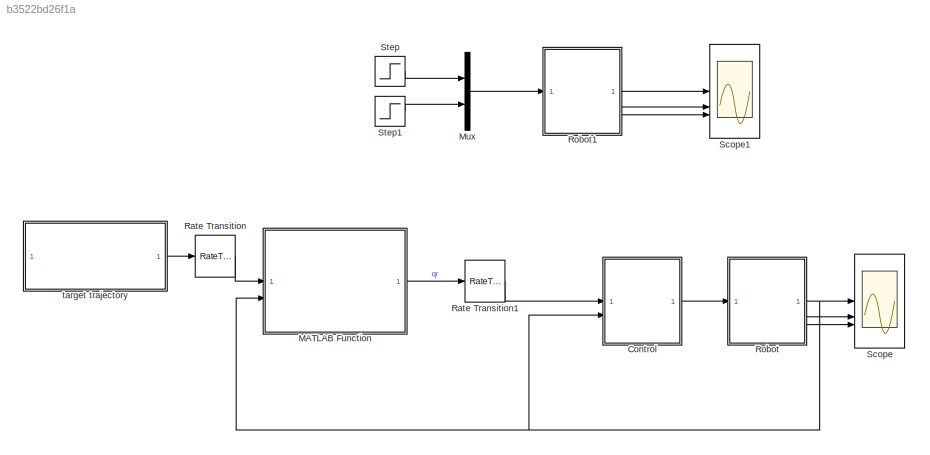
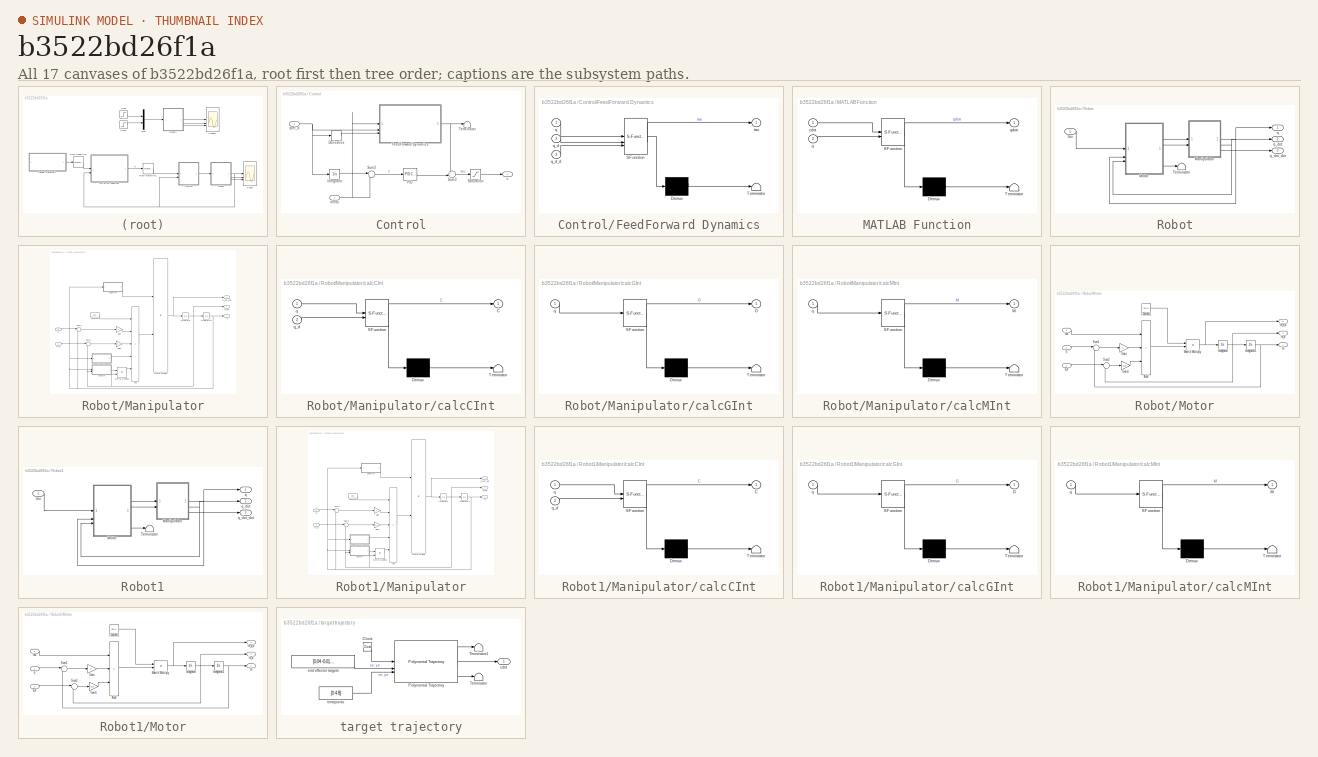
[diagram: thumbnail index - all 17 canvases of the model, root first then tree order]
MODEL slx_b3522bd26f1a
KIND model
CONFIG AbsTol = auto
CONFIG EnableMultiTasking = off
CONFIG FixedStep = auto
CONFIG InitFcn = init_const;
CONFIG MaxStep = auto
CONFIG MinStep = auto
CONFIG RelTol = 1e-3
CONFIG SampleTimeConstraint = Unconstrained
CONFIG SolverName = VariableStepAuto
CONFIG StartTime = 0.0
CONFIG StopTime = 12
BLOCK [SubSystem] Control
BLOCK [Derivative] Control/Derivative
BLOCK [SubSystem] Control/FeedForward Dynamics
  ErrorFcn = Stateflow.Translate.translate
  PermitHierarchicalResolution = ExplicitOnly
  SFBlockType = MATLAB Function
  TreatAsAtomicUnit = on
BLOCK [Demux] Control/FeedForward Dynamics/ Demux 
  Outputs = 1
BLOCK [S-Function] Control/FeedForward Dynamics/ SFunction 
  EnableBusSupport = on
  FunctionName = sf_sfun
  Parameters = g,l1,l2,m1,m2
  PortCounts = [3 2]
  SFcnIsStateOwnerBlock = off
  SFunctionDeploymentMode = off
  Tag = Stateflow S-Function 13
BLOCK [Terminator] Control/FeedForward Dynamics/ Terminator 
BLOCK [Inport] Control/FeedForward Dynamics/q
BLOCK [Inport] Control/FeedForward Dynamics/q_d
  Port = 2
BLOCK [Inport] Control/FeedForward Dynamics/q_d_d
  Port = 3
BLOCK [Outport] Control/FeedForward Dynamics/tau
BLOCK [Integrator] Control/Integrator
BLOCK [Reference] Control/PID  REF=slpidlib/PID Controller
  LibrarySourceBlock = simulink/Continuous/PID Controller
  SourceBlock = slpidlib/PID Controller
  SourceType = PID 1dof
BLOCK [Saturate] Control/Saturation
  LowerLimit = -12
  UpperLimit = 12
BLOCK [Sum] Control/Sum2
  Inputs = |+-
BLOCK [Sum] Control/Sum3
  Inputs = ++|
BLOCK [Terminator] Control/Terminator
BLOCK [Inport] Control/meas
  Port = 2
BLOCK [Inport] Control/qref_d
BLOCK [Outport] Control/u
BLOCK [SubSystem] MATLAB Function
  ErrorFcn = Stateflow.Translate.translate
  PermitHierarchicalResolution = ExplicitOnly
  SFBlockType = MATLAB Function
  TreatAsAtomicUnit = on
BLOCK [Demux] MATLAB Function/ Demux 
  Outputs = 1
BLOCK [S-Function] MATLAB Function/ SFunction 
  EnableBusSupport = on
  FunctionName = sf_sfun
  Parameters = l1,l2
  PortCounts = [2 2]
  SFcnIsStateOwnerBlock = off
  SFunctionDeploymentMode = off
  Tag = Stateflow S-Function 4
BLOCK [Terminator] MATLAB Function/ Terminator 
BLOCK [Inport] MATLAB Function/cdot
BLOCK [Inport] MATLAB Function/q
  Port = 2
BLOCK [Outport] MATLAB Function/qdotr
BLOCK [Mux] Mux
  Commented = on
  DisplayOption = bar
  Inputs = 2
BLOCK [RateTransition] Rate Transition
BLOCK [RateTransition] Rate Transition1
BLOCK [SubSystem] Robot
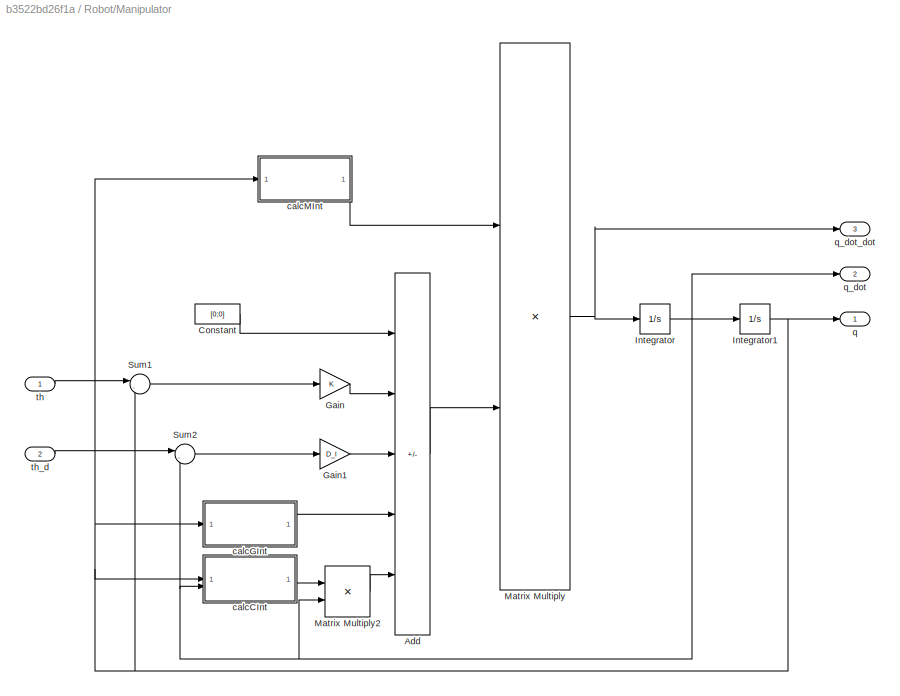
BLOCK [SubSystem] Robot/Manipulator
BLOCK [Sum] Robot/Manipulator/Add
  IconShape = rectangular
  Inputs = +----
BLOCK [Constant] Robot/Manipulator/Constant
  Value = [0;0]
BLOCK [Gain] Robot/Manipulator/Gain
  Gain = K
  Multiplication = Matrix(K*u)
BLOCK [Gain] Robot/Manipulator/Gain1
  Gain = D_l
  Multiplication = Matrix(K*u)
BLOCK [Integrator] Robot/Manipulator/Integrator
BLOCK [Integrator] Robot/Manipulator/Integrator1
BLOCK [Product] Robot/Manipulator/Matrix Multiply
  Multiplication = Matrix(*)
BLOCK [Product] Robot/Manipulator/Matrix Multiply2
  Multiplication = Matrix(*)
BLOCK [Sum] Robot/Manipulator/Sum1
  Inputs = |-+
BLOCK [Sum] Robot/Manipulator/Sum2
  Inputs = |-+
BLOCK [SubSystem] Robot/Manipulator/calcCInt
  ErrorFcn = Stateflow.Translate.translate
  PermitHierarchicalResolution = ExplicitOnly
  SFBlockType = MATLAB Function
  TreatAsAtomicUnit = on
BLOCK [Demux] Robot/Manipulator/calcCInt/ Demux 
  Outputs = 1
BLOCK [S-Function] Robot/Manipulator/calcCInt/ SFunction 
  EnableBusSupport = on
  FunctionName = sf_sfun
  Parameters = l1,l2,m1,m2
  PortCounts = [2 2]
  SFcnIsStateOwnerBlock = off
  SFunctionDeploymentMode = off
  Tag = Stateflow S-Function 1
BLOCK [Terminator] Robot/Manipulator/calcCInt/ Terminator 
BLOCK [Outport] Robot/Manipulator/calcCInt/C
BLOCK [Inport] Robot/Manipulator/calcCInt/q
BLOCK [Inport] Robot/Manipulator/calcCInt/q_d
  Port = 2
BLOCK [SubSystem] Robot/Manipulator/calcGInt
  ErrorFcn = Stateflow.Translate.translate
  PermitHierarchicalResolution = ExplicitOnly
  SFBlockType = MATLAB Function
  TreatAsAtomicUnit = on
BLOCK [Demux] Robot/Manipulator/calcGInt/ Demux 
  Outputs = 1
BLOCK [S-Function] Robot/Manipulator/calcGInt/ SFunction 
  EnableBusSupport = on
  FunctionName = sf_sfun
  Parameters = g,l1,l2,m1,m2
  PortCounts = [1 2]
  SFcnIsStateOwnerBlock = off
  SFunctionDeploymentMode = off
  Tag = Stateflow S-Function 3
BLOCK [Terminator] Robot/Manipulator/calcGInt/ Terminator 
BLOCK [Outport] Robot/Manipulator/calcGInt/G
BLOCK [Inport] Robot/Manipulator/calcGInt/q
BLOCK [SubSystem] Robot/Manipulator/calcMInt
  ErrorFcn = Stateflow.Translate.translate
  PermitHierarchicalResolution = ExplicitOnly
  SFBlockType = MATLAB Function
  TreatAsAtomicUnit = on
BLOCK [Demux] Robot/Manipulator/calcMInt/ Demux 
  Outputs = 1
BLOCK [S-Function] Robot/Manipulator/calcMInt/ SFunction 
  EnableBusSupport = on
  FunctionName = sf_sfun
  Parameters = l1,l2,m1,m2
  PortCounts = [1 2]
  SFcnIsStateOwnerBlock = off
  SFunctionDeploymentMode = off
  Tag = Stateflow S-Function 2
BLOCK [Terminator] Robot/Manipulator/calcMInt/ Terminator 
BLOCK [Outport] Robot/Manipulator/calcMInt/M
BLOCK [Inport] Robot/Manipulator/calcMInt/q
BLOCK [Outport] Robot/Manipulator/q
BLOCK [Outport] Robot/Manipulator/q_dot
  Port = 2
BLOCK [Outport] Robot/Manipulator/q_dot_dot
  Port = 3
BLOCK [Inport] Robot/Manipulator/th
BLOCK [Inport] Robot/Manipulator/th_d
  Port = 2
BLOCK [SubSystem] Robot/Motor
BLOCK [Sum] Robot/Motor/Add
  IconShape = rectangular
  Inputs = +--
BLOCK [Constant] Robot/Motor/Constant1
  Value = inv(J)
BLOCK [Gain] Robot/Motor/Gain
  Gain = K
  Multiplication = Matrix(K*u)
BLOCK [Gain] Robot/Motor/Gain1
  Gain = D_m
  Multiplication = Matrix(K*u)
BLOCK [Integrator] Robot/Motor/Integrator
BLOCK [Integrator] Robot/Motor/Integrator1
BLOCK [Product] Robot/Motor/Matrix Multiply
  Multiplication = Matrix(*)
BLOCK [Sum] Robot/Motor/Sum1
  Inputs = |-+
BLOCK [Sum] Robot/Motor/Sum2
  Inputs = |-+
BLOCK [Inport] Robot/Motor/q
  Port = 2
BLOCK [Inport] Robot/Motor/q_d
  Port = 3
BLOCK [Inport] Robot/Motor/tau
BLOCK [Outport] Robot/Motor/th
BLOCK [Outport] Robot/Motor/th_d
  Port = 2
BLOCK [Outport] Robot/Motor/th_d_d
  Port = 3
BLOCK [Terminator] Robot/Terminator
BLOCK [Outport] Robot/q
BLOCK [Outport] Robot/q_dot
  Port = 2
BLOCK [Outport] Robot/q_dot_dot
  Port = 3
BLOCK [Inport] Robot/tau
BLOCK [SubSystem] Robot1
  Commented = on
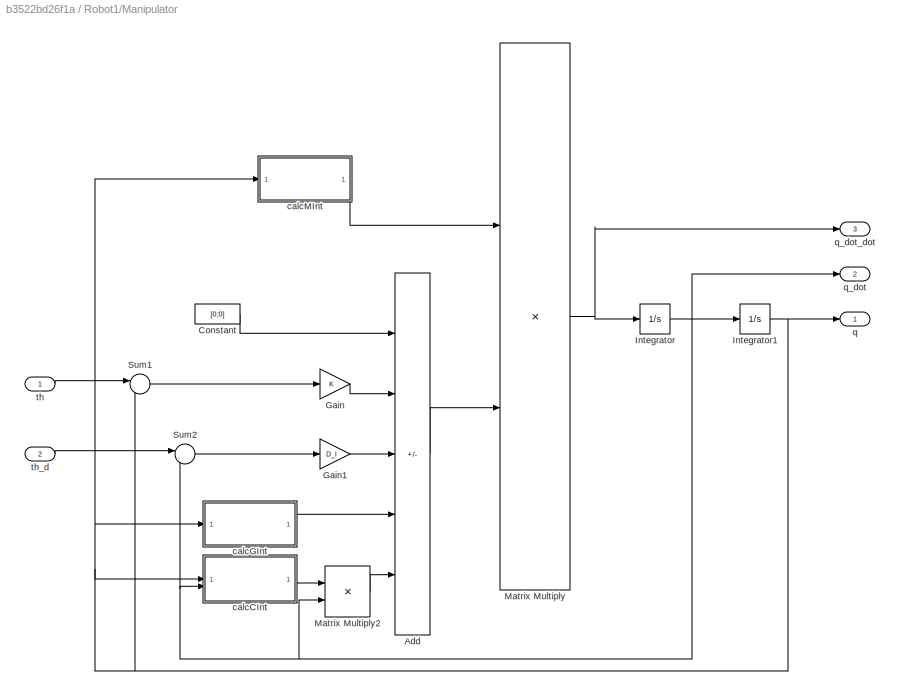
BLOCK [SubSystem] Robot1/Manipulator
BLOCK [Sum] Robot1/Manipulator/Add
  IconShape = rectangular
  Inputs = +----
BLOCK [Constant] Robot1/Manipulator/Constant
  Value = [0;0]
BLOCK [Gain] Robot1/Manipulator/Gain
  Gain = K
  Multiplication = Matrix(K*u)
BLOCK [Gain] Robot1/Manipulator/Gain1
  Gain = D_l
  Multiplication = Matrix(K*u)
BLOCK [Integrator] Robot1/Manipulator/Integrator
BLOCK [Integrator] Robot1/Manipulator/Integrator1
BLOCK [Product] Robot1/Manipulator/Matrix Multiply
  Multiplication = Matrix(*)
BLOCK [Product] Robot1/Manipulator/Matrix Multiply2
  Multiplication = Matrix(*)
BLOCK [Sum] Robot1/Manipulator/Sum1
  Inputs = |-+
BLOCK [Sum] Robot1/Manipulator/Sum2
  Inputs = |-+
BLOCK [SubSystem] Robot1/Manipulator/calcCInt
  ErrorFcn = Stateflow.Translate.translate
  PermitHierarchicalResolution = ExplicitOnly
  SFBlockType = MATLAB Function
  TreatAsAtomicUnit = on
BLOCK [Demux] Robot1/Manipulator/calcCInt/ Demux 
  Outputs = 1
BLOCK [S-Function] Robot1/Manipulator/calcCInt/ SFunction 
  EnableBusSupport = on
  FunctionName = sf_sfun
  Parameters = l1,l2,m1,m2
  PortCounts = [2 2]
  SFcnIsStateOwnerBlock = off
  SFunctionDeploymentMode = off
  Tag = Stateflow S-Function 5
BLOCK [Terminator] Robot1/Manipulator/calcCInt/ Terminator 
BLOCK [Outport] Robot1/Manipulator/calcCInt/C
BLOCK [Inport] Robot1/Manipulator/calcCInt/q
BLOCK [Inport] Robot1/Manipulator/calcCInt/q_d
  Port = 2
BLOCK [SubSystem] Robot1/Manipulator/calcGInt
  ErrorFcn = Stateflow.Translate.translate
  PermitHierarchicalResolution = ExplicitOnly
  SFBlockType = MATLAB Function
  TreatAsAtomicUnit = on
BLOCK [Demux] Robot1/Manipulator/calcGInt/ Demux 
  Outputs = 1
BLOCK [S-Function] Robot1/Manipulator/calcGInt/ SFunction 
  EnableBusSupport = on
  FunctionName = sf_sfun
  Parameters = g,l1,l2,m1,m2
  PortCounts = [1 2]
  SFcnIsStateOwnerBlock = off
  SFunctionDeploymentMode = off
  Tag = Stateflow S-Function 6
BLOCK [Terminator] Robot1/Manipulator/calcGInt/ Terminator 
BLOCK [Outport] Robot1/Manipulator/calcGInt/G
BLOCK [Inport] Robot1/Manipulator/calcGInt/q
BLOCK [SubSystem] Robot1/Manipulator/calcMInt
  ErrorFcn = Stateflow.Translate.translate
  PermitHierarchicalResolution = ExplicitOnly
  SFBlockType = MATLAB Function
  TreatAsAtomicUnit = on
BLOCK [Demux] Robot1/Manipulator/calcMInt/ Demux 
  Outputs = 1
BLOCK [S-Function] Robot1/Manipulator/calcMInt/ SFunction 
  EnableBusSupport = on
  FunctionName = sf_sfun
  Parameters = l1,l2,m1,m2
  PortCounts = [1 2]
  SFcnIsStateOwnerBlock = off
  SFunctionDeploymentMode = off
  Tag = Stateflow S-Function 7
BLOCK [Terminator] Robot1/Manipulator/calcMInt/ Terminator 
BLOCK [Outport] Robot1/Manipulator/calcMInt/M
BLOCK [Inport] Robot1/Manipulator/calcMInt/q
BLOCK [Outport] Robot1/Manipulator/q
BLOCK [Outport] Robot1/Manipulator/q_dot
  Port = 2
BLOCK [Outport] Robot1/Manipulator/q_dot_dot
  Port = 3
BLOCK [Inport] Robot1/Manipulator/th
BLOCK [Inport] Robot1/Manipulator/th_d
  Port = 2
BLOCK [SubSystem] Robot1/Motor
BLOCK [Sum] Robot1/Motor/Add
  IconShape = rectangular
  Inputs = +--
BLOCK [Constant] Robot1/Motor/Constant1
  Value = inv(J)
BLOCK [Gain] Robot1/Motor/Gain
  Gain = K
  Multiplication = Matrix(K*u)
BLOCK [Gain] Robot1/Motor/Gain1
  Gain = D_m
  Multiplication = Matrix(K*u)
BLOCK [Integrator] Robot1/Motor/Integrator
BLOCK [Integrator] Robot1/Motor/Integrator1
BLOCK [Product] Robot1/Motor/Matrix Multiply
  Multiplication = Matrix(*)
BLOCK [Sum] Robot1/Motor/Sum1
  Inputs = |-+
BLOCK [Sum] Robot1/Motor/Sum2
  Inputs = |-+
BLOCK [Inport] Robot1/Motor/q
  Port = 2
BLOCK [Inport] Robot1/Motor/q_d
  Port = 3
BLOCK [Inport] Robot1/Motor/tau
BLOCK [Outport] Robot1/Motor/th
BLOCK [Outport] Robot1/Motor/th_d
  Port = 2
BLOCK [Outport] Robot1/Motor/th_d_d
  Port = 3
BLOCK [Terminator] Robot1/Terminator
BLOCK [Outport] Robot1/q
BLOCK [Outport] Robot1/q_dot
  Port = 2
BLOCK [Outport] Robot1/q_dot_dot
  Port = 3
BLOCK [Inport] Robot1/tau
BLOCK [Scope] Scope
  Floating = off
  NumInputPorts = 3
  ScopeSpecificationString = Simulink.scopes.TimeScopeBlockCfg('CurrentConfiguration', extmgr.ConfigurationSet(extmgr.Configuration('Core','General UI',true),extmgr.Configuration('Core','Source UI',true),extmgr.Configuration('Sources','WiredSimulink',true,'DataLoggingVariableName','ScopeData1'),extmgr.Configuration('Visuals','Time Domain',true,'SerializedDisplays',{struct('MinYLimReal','-1.00000','MaxYLimReal','1.00000','YLab...<+3190ch>
BLOCK [Scope] Scope1
  Commented = on
  Floating = off
  NumInputPorts = 3
  ScopeSpecificationString = Simulink.scopes.TimeScopeBlockCfg('CurrentConfiguration', extmgr.ConfigurationSet(extmgr.Configuration('Core','General UI',true),extmgr.Configuration('Core','Source UI',true),extmgr.Configuration('Sources','WiredSimulink',true,'DataLoggingVariableName','ScopeData1'),extmgr.Configuration('Visuals','Time Domain',true,'SerializedDisplays',{struct('MinYLimReal','-13.25056','MaxYLimReal','60.05758','YL...<+3142ch>
BLOCK [Step] Step
  Commented = on
  SampleTime = 0
BLOCK [Step] Step1
  Commented = on
  SampleTime = 0
BLOCK [SubSystem] target trajectory
BLOCK [Clock] target trajectory/Clock
BLOCK [Reference] target trajectory/Polynomial Trajectory  REF=robotcorelib/Polynomial Trajectory
  SourceBlock = robotcorelib/Polynomial Trajectory
  SourceType = robotics.slcore.internal.block.PolyTrajSys
BLOCK [Terminator] target trajectory/Terminator
BLOCK [Terminator] target trajectory/Terminator1
BLOCK [Outport] target trajectory/cdot
BLOCK [Constant] target trajectory/end effector targets
  Value = [0.04 -0.011; 0.04 -0.011; -0.08 -0.03]'
BLOCK [Constant] target trajectory/timepoints
  Value = [0 4 8]
LINE Control/Derivative:1 -> Control/FeedForward Dynamics:3
NET Control/FeedForward Dynamics:1 -> Control/Sum3:1, Control/Terminator:1
LINE Control/Integrator:1 -> Control/Sum2:1
LINE Control/PID:1 -> Control/Sum3:2
LINE Control/Saturation:1 -> Control/u:1
LINE Control/Sum2:1 -> Control/PID:1
LINE Control/Sum3:1 -> Control/Saturation:1
NET Control/meas:1 -> Control/FeedForward Dynamics:1, Control/Sum2:2
NET Control/qref_d:1 -> Control/Derivative:1, Control/FeedForward Dynamics:2, Control/Integrator:1
LINE Control:1 -> Robot:1
LINE MATLAB Function:1 -> Rate Transition1:1
LINE Mux:1 -> Robot1:1
LINE Rate Transition1:1 -> Control:1
LINE Rate Transition:1 -> MATLAB Function:1
LINE Robot/Manipulator/Add:1 -> Robot/Manipulator/Matrix Multiply:2
LINE Robot/Manipulator/Constant:1 -> Robot/Manipulator/Add:1
LINE Robot/Manipulator/Gain1:1 -> Robot/Manipulator/Add:3
LINE Robot/Manipulator/Gain:1 -> Robot/Manipulator/Add:2
NET Robot/Manipulator/Integrator1:1 -> Robot/Manipulator/Sum1:2, Robot/Manipulator/calcCInt:1, Robot/Manipulator/calcGInt:1, Robot/Manipulator/calcMInt:1, Robot/Manipulator/q:1
NET Robot/Manipulator/Integrator:1 -> Robot/Manipulator/Integrator1:1, Robot/Manipulator/Matrix Multiply2:2, Robot/Manipulator/Sum2:2, Robot/Manipulator/calcCInt:2, Robot/Manipulator/q_dot:1
LINE Robot/Manipulator/Matrix Multiply2:1 -> Robot/Manipulator/Add:5
NET Robot/Manipulator/Matrix Multiply:1 -> Robot/Manipulator/Integrator:1, Robot/Manipulator/q_dot_dot:1
LINE Robot/Manipulator/Sum1:1 -> Robot/Manipulator/Gain:1
LINE Robot/Manipulator/Sum2:1 -> Robot/Manipulator/Gain1:1
LINE Robot/Manipulator/calcCInt:1 -> Robot/Manipulator/Matrix Multiply2:1
LINE Robot/Manipulator/calcGInt:1 -> Robot/Manipulator/Add:4
LINE Robot/Manipulator/calcMInt:1 -> Robot/Manipulator/Matrix Multiply:1
LINE Robot/Manipulator/th:1 -> Robot/Manipulator/Sum1:1
LINE Robot/Manipulator/th_d:1 -> Robot/Manipulator/Sum2:1
NET Robot/Manipulator:1 -> Robot/Motor:2, Robot/q:1
NET Robot/Manipulator:2 -> Robot/Motor:3, Robot/q_dot:1
LINE Robot/Manipulator:3 -> Robot/q_dot_dot:1
LINE Robot/Motor/Add:1 -> Robot/Motor/Matrix Multiply:2
LINE Robot/Motor/Constant1:1 -> Robot/Motor/Matrix Multiply:1
LINE Robot/Motor/Gain1:1 -> Robot/Motor/Add:3
LINE Robot/Motor/Gain:1 -> Robot/Motor/Add:2
NET Robot/Motor/Integrator1:1 -> Robot/Motor/Sum1:2, Robot/Motor/th:1
NET Robot/Motor/Integrator:1 -> Robot/Motor/Integrator1:1, Robot/Motor/Sum2:2, Robot/Motor/th_d:1
NET Robot/Motor/Matrix Multiply:1 -> Robot/Motor/Integrator:1, Robot/Motor/th_d_d:1
LINE Robot/Motor/Sum1:1 -> Robot/Motor/Gain:1
LINE Robot/Motor/Sum2:1 -> Robot/Motor/Gain1:1
LINE Robot/Motor/q:1 -> Robot/Motor/Sum1:1
LINE Robot/Motor/q_d:1 -> Robot/Motor/Sum2:1
LINE Robot/Motor/tau:1 -> Robot/Motor/Add:1
LINE Robot/Motor:1 -> Robot/Manipulator:1
LINE Robot/Motor:2 -> Robot/Manipulator:2
LINE Robot/Motor:3 -> Robot/Terminator:1
LINE Robot/tau:1 -> Robot/Motor:1
LINE Robot1/Manipulator/Add:1 -> Robot1/Manipulator/Matrix Multiply:2
LINE Robot1/Manipulator/Constant:1 -> Robot1/Manipulator/Add:1
LINE Robot1/Manipulator/Gain1:1 -> Robot1/Manipulator/Add:3
LINE Robot1/Manipulator/Gain:1 -> Robot1/Manipulator/Add:2
NET Robot1/Manipulator/Integrator1:1 -> Robot1/Manipulator/Sum1:2, Robot1/Manipulator/calcCInt:1, Robot1/Manipulator/calcGInt:1, Robot1/Manipulator/calcMInt:1, Robot1/Manipulator/q:1
NET Robot1/Manipulator/Integrator:1 -> Robot1/Manipulator/Integrator1:1, Robot1/Manipulator/Matrix Multiply2:2, Robot1/Manipulator/Sum2:2, Robot1/Manipulator/calcCInt:2, Robot1/Manipulator/q_dot:1
LINE Robot1/Manipulator/Matrix Multiply2:1 -> Robot1/Manipulator/Add:5
NET Robot1/Manipulator/Matrix Multiply:1 -> Robot1/Manipulator/Integrator:1, Robot1/Manipulator/q_dot_dot:1
LINE Robot1/Manipulator/Sum1:1 -> Robot1/Manipulator/Gain:1
LINE Robot1/Manipulator/Sum2:1 -> Robot1/Manipulator/Gain1:1
LINE Robot1/Manipulator/calcCInt:1 -> Robot1/Manipulator/Matrix Multiply2:1
LINE Robot1/Manipulator/calcGInt:1 -> Robot1/Manipulator/Add:4
LINE Robot1/Manipulator/calcMInt:1 -> Robot1/Manipulator/Matrix Multiply:1
LINE Robot1/Manipulator/th:1 -> Robot1/Manipulator/Sum1:1
LINE Robot1/Manipulator/th_d:1 -> Robot1/Manipulator/Sum2:1
NET Robot1/Manipulator:1 -> Robot1/Motor:2, Robot1/q:1
NET Robot1/Manipulator:2 -> Robot1/Motor:3, Robot1/q_dot:1
LINE Robot1/Manipulator:3 -> Robot1/q_dot_dot:1
LINE Robot1/Motor/Add:1 -> Robot1/Motor/Matrix Multiply:2
LINE Robot1/Motor/Constant1:1 -> Robot1/Motor/Matrix Multiply:1
LINE Robot1/Motor/Gain1:1 -> Robot1/Motor/Add:3
LINE Robot1/Motor/Gain:1 -> Robot1/Motor/Add:2
NET Robot1/Motor/Integrator1:1 -> Robot1/Motor/Sum1:2, Robot1/Motor/th:1
NET Robot1/Motor/Integrator:1 -> Robot1/Motor/Integrator1:1, Robot1/Motor/Sum2:2, Robot1/Motor/th_d:1
NET Robot1/Motor/Matrix Multiply:1 -> Robot1/Motor/Integrator:1, Robot1/Motor/th_d_d:1
LINE Robot1/Motor/Sum1:1 -> Robot1/Motor/Gain:1
LINE Robot1/Motor/Sum2:1 -> Robot1/Motor/Gain1:1
LINE Robot1/Motor/q:1 -> Robot1/Motor/Sum1:1
LINE Robot1/Motor/q_d:1 -> Robot1/Motor/Sum2:1
LINE Robot1/Motor/tau:1 -> Robot1/Motor/Add:1
LINE Robot1/Motor:1 -> Robot1/Manipulator:1
LINE Robot1/Motor:2 -> Robot1/Manipulator:2
LINE Robot1/Motor:3 -> Robot1/Terminator:1
LINE Robot1/tau:1 -> Robot1/Motor:1
LINE Robot1:1 -> Scope1:1
LINE Robot1:2 -> Scope1:2
LINE Robot1:3 -> Scope1:3
NET Robot:1 -> Control:2, MATLAB Function:2, Scope:1
LINE Robot:2 -> Scope:2
LINE Robot:3 -> Scope:3
LINE Step1:1 -> Mux:2
LINE Step:1 -> Mux:1
LINE target trajectory/Clock:1 -> target trajectory/Polynomial Trajectory:1
LINE target trajectory/Polynomial Trajectory:1 -> target trajectory/Terminator1:1
LINE target trajectory/Polynomial Trajectory:2 -> target trajectory/cdot:1
LINE target trajectory/Polynomial Trajectory:3 -> target trajectory/Terminator:1
LINE target trajectory/end effector targets:1 -> target trajectory/Polynomial Trajectory:2
LINE target trajectory/timepoints:1 -> target trajectory/Polynomial Trajectory:3
LINE target trajectory:1 -> Rate Transition:1
note: NET lines group one-source signal fan-out (src -> all destinations, sorted); 1:1 wires keep LINE
CHART Robot/Manipulator/calcCInt states=1 transitions=1
  STATE_LABEL 'eML_blk_kernel()'
  STATE_LABEL 'SCRIPT:\nfunction C = calcCInt(q, q_d, m1, m2, l1, l2)\nC=[-2*l1*l2*m2*sin(q(2))*q_d(2) -l1*l2*m2*sin(q(2))*q_d(2);\n      l1*l2*m2*sin(q(2))*q_d(1) 0];\nend'
CHART Robot/Manipulator/calcMInt states=1 transitions=1
  STATE_LABEL 'eML_blk_kernel()'
  STATE_LABEL 'SCRIPT:\nfunction M = calcMInt(q, m1, m2, l1, l2)\nM=[(m1+m2)*l1^2+m2*l2^2+2*m2*l1*l2*cos(q(2)) m2*l2^2+m2*l1*l2*cos(q(2));\n      m2*l2^2+m2*l1*l2*cos(q(2)) m2*l2^2];\nM=inv(M);\nend'
CHART Robot/Manipulator/calcGInt states=1 transitions=1
  STATE_LABEL 'eML_blk_kernel()'
  STATE_LABEL 'SCRIPT:\nfunction G = calcGInt(q, m1, m2, g, l1, l2)\nG = -[(m1+m2)*g*l1*sin(q(1))+m2*g*l2*sin(q(1)+q(2));\n         m2*g*l2*sin(q(1)+q(2))];\nend'
CHART MATLAB Function states=1 transitions=1
  STATE_LABEL 'eML_blk_kernel()'
  STATE_LABEL 'SCRIPT:\nfunction qdotr = IK(cdot, l1, l2, q)\n\nq1 = q(1);\nq2 = q(2);\n\nJfnc = @(L1,L2,q1,q2)reshape([-L2.*sin(q1+q2)-L1.*sin(q1),L2.*cos(q1+q2)+L1.*cos(q1),-L2.*sin(q1+q2),L2.*cos(q1+q2)],[2,2]);\n\nJ = Jfnc(l1,l2,q1,q2);\n\nqdotr = pinv(J)*cdot;\n\nend'
CHART Robot1/Manipulator/calcCInt states=1 transitions=1
  STATE_LABEL 'eML_blk_kernel()'
  STATE_LABEL 'SCRIPT:\nfunction C = calcCInt(q, q_d, m1, m2, l1, l2)\nC=[-2*l1*l2*m2*sin(q(2))*q_d(2) -l1*l2*m2*sin(q(2))*q_d(2);\n      l1*l2*m2*sin(q(2))*q_d(1) 0];\nend'
CHART Robot1/Manipulator/calcGInt states=1 transitions=1
  STATE_LABEL 'eML_blk_kernel()'
  STATE_LABEL 'SCRIPT:\nfunction G = calcGInt(q, m1, m2, g, l1, l2)\nG = -[(m1+m2)*g*l1*sin(q(1))+m2*g*l2*sin(q(1)+q(2));\n         m2*g*l2*sin(q(1)+q(2))];\nend'
CHART Robot1/Manipulator/calcMInt states=1 transitions=1
  STATE_LABEL 'eML_blk_kernel()'
  STATE_LABEL 'SCRIPT:\nfunction M = calcMInt(q, m1, m2, l1, l2)\nM=[(m1+m2)*l1^2+m2*l2^2+2*m2*l1*l2*cos(q(2)) m2*l2^2+m2*l1*l2*cos(q(2));\n      m2*l2^2+m2*l1*l2*cos(q(2)) m2*l2^2];\nM=inv(M);\nend'
CHART Control/FeedForward Dynamics states=1 transitions=1
  STATE_LABEL 'eML_blk_kernel()'
  STATE_LABEL 'SCRIPT:\nfunction tau = ID(q, q_d, q_d_d, m1, m2, l1, l2, g)\n\nq1 = q(1);\nq2 = q(2);\n\nq1dot = q_d(1);\nq2dot = q_d(2);\n\nM11 = (m1+m2)*l1^2 + m2*l2^2 + 2*m2*l1*l2*cos(q2);\nM12 = m2*l2^2 + m2*l1*l2*cos(q2);\nM21 = m2*l2^2+m2*l1*l2*cos(q2);\nM22 = m2*l2^2;\n\nM = [M11 M12; ...\n     M21 M22];\n\nC11 = -m2*l1*l2*2*q2dot*sin(q2);\nC12 = -m2*l1*l2*q2dot*sin(q2); \n\nC21 = m2*l1*l2*q1dot*sin(q2);\nC22 = 0;\n\nC = [C11 C...<+195ch>'
CHART  states=0 transitions=0
CHART  states=0 transitions=0
CHART  states=0 transitions=0
CHART  states=0 transitions=0
CHART  states=0 transitions=0
CHART  states=0 transitions=0
CHART  states=0 transitions=0
CHART  states=0 transitions=0
